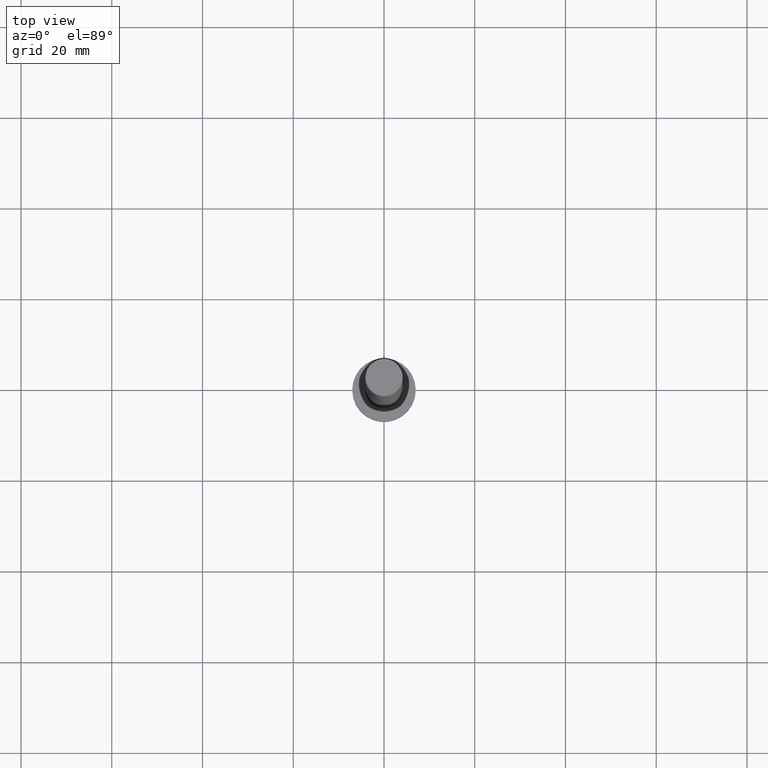
[diagram: clean part render]
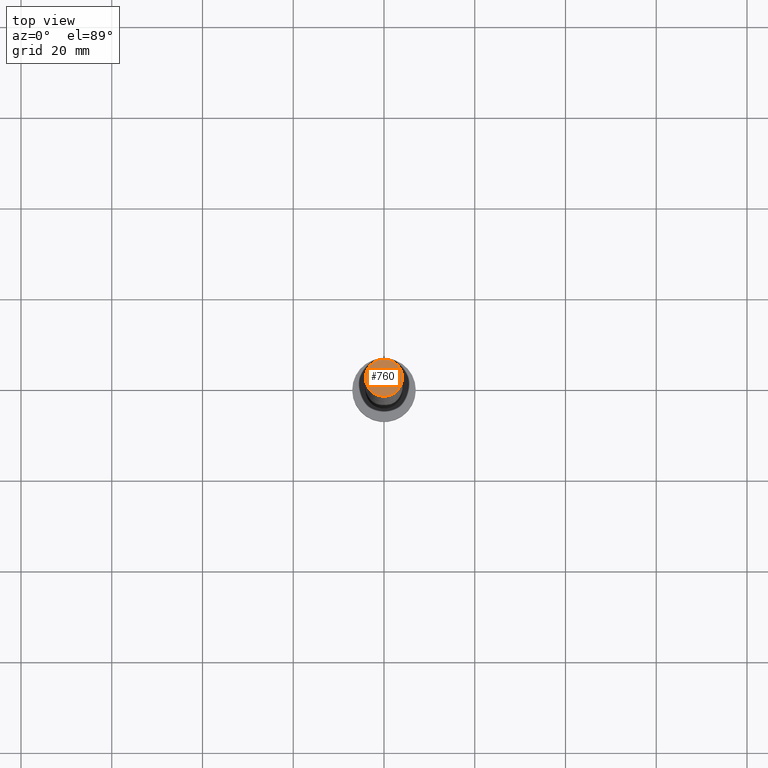
[diagram: same view with one face highlighted and labeled with its STEP entity id]
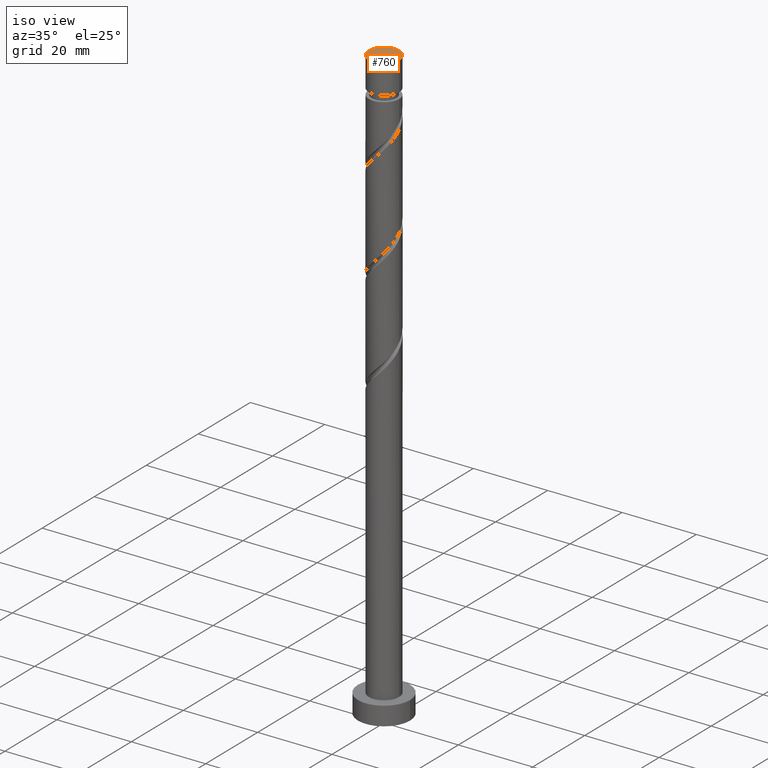
[diagram: same view with one face highlighted and labeled with its STEP entity id]
A machine part, top view. The second image highlights one B-rep face of the part: STEP entity #760.
A second angle (iso view) of the same face is appended — the face is thin or edge-on in the first view.
In plain terms, the highlighted planar face has unit normal (0, 0, 1).
Its self-contained STEP definition (entity closure, byte-faithful):
#5 = FACE_OUTER_BOUND ( 'NONE', #376, .T. ) ;
#89 = ORIENTED_EDGE ( 'NONE', *, *, #1380, .T. ) ;
#117 = VERTEX_POINT ( 'NONE', #707 ) ;
#133 = DIRECTION ( 'NONE',  ( 1.000000000000000000, 0.000000000000000000, 0.000000000000000000 ) ) ;
#264 = CARTESIAN_POINT ( 'NONE',  ( 0.000000000000000000, 0.000000000000000000, 160.0000000000000000 ) ) ;
#315 = CARTESIAN_POINT ( 'NONE',  ( 4.099999999999999645, 5.021051876504147385E-16, 160.0000000000000000 ) ) ;
#376 = EDGE_LOOP ( 'NONE', ( #1016, #89 ) ) ;
#389 = DIRECTION ( 'NONE',  ( 0.000000000000000000, 0.000000000000000000, 1.000000000000000000 ) ) ;
#443 = AXIS2_PLACEMENT_3D ( 'NONE', #264, #389, #133 ) ;
#522 = PLANE ( 'NONE',  #947 ) ;
#542 = DIRECTION ( 'NONE',  ( 1.000000000000000000, 0.000000000000000000, 0.000000000000000000 ) ) ;
#608 = CIRCLE ( 'NONE', #443, 4.099999999999999645 ) ;
#654 = CARTESIAN_POINT ( 'NONE',  ( 0.000000000000000000, 0.000000000000000000, 160.0000000000000000 ) ) ;
#707 = CARTESIAN_POINT ( 'NONE',  ( -4.099999999999999645, 0.000000000000000000, 160.0000000000000000 ) ) ;
#760 = ADVANCED_FACE ( 'NONE', ( #5 ), #522, .T. ) ;
#785 = DIRECTION ( 'NONE',  ( 0.000000000000000000, 0.000000000000000000, 1.000000000000000000 ) ) ;
#853 = EDGE_CURVE ( 'NONE', #117, #1095, #608, .T. ) ;
#947 = AXIS2_PLACEMENT_3D ( 'NONE', #1436, #785, #1540 ) ;
#1016 = ORIENTED_EDGE ( 'NONE', *, *, #853, .T. ) ;
#1095 = VERTEX_POINT ( 'NONE', #315 ) ;
#1109 = AXIS2_PLACEMENT_3D ( 'NONE', #654, #1571, #542 ) ;
#1190 = CIRCLE ( 'NONE', #1109, 4.099999999999999645 ) ;
#1380 = EDGE_CURVE ( 'NONE', #1095, #117, #1190, .T. ) ;
#1436 = CARTESIAN_POINT ( 'NONE',  ( 0.000000000000000000, 0.000000000000000000, 160.0000000000000000 ) ) ;
#1540 = DIRECTION ( 'NONE',  ( 1.000000000000000000, 0.000000000000000000, -0.000000000000000000 ) ) ;
#1571 = DIRECTION ( 'NONE',  ( 0.000000000000000000, 0.000000000000000000, 1.000000000000000000 ) ) ;